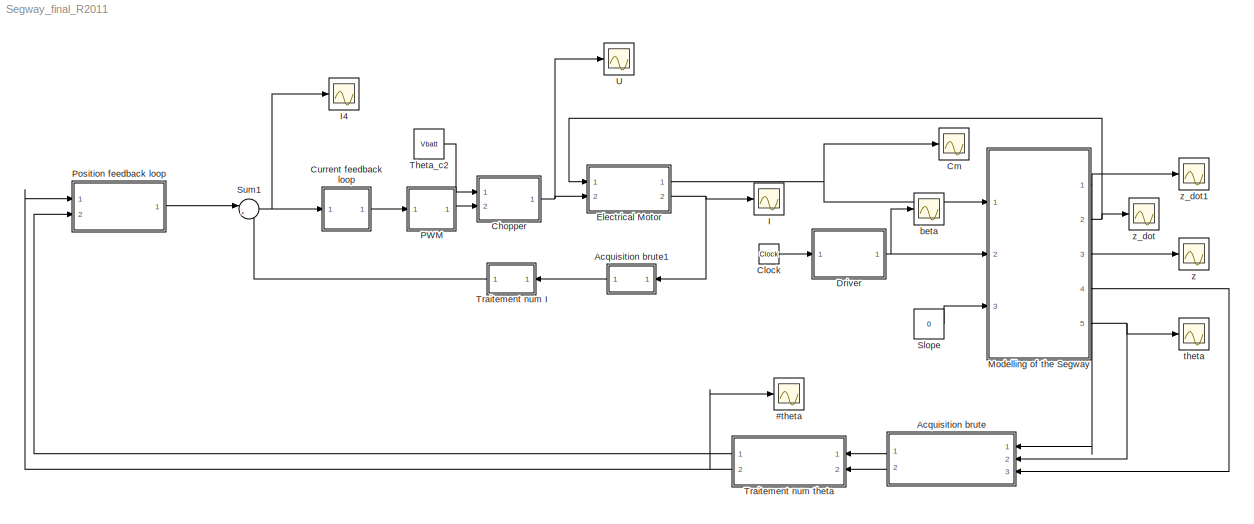
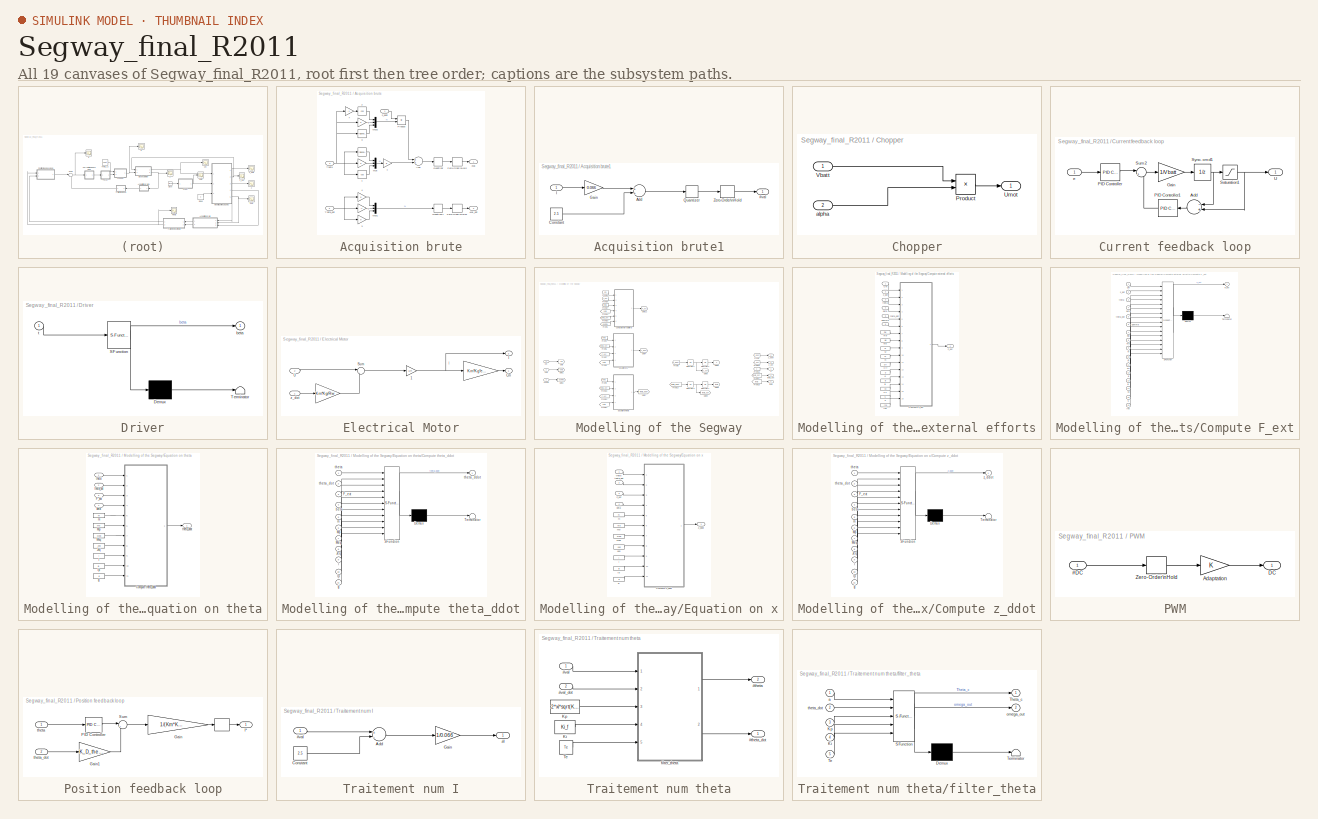
[diagram: thumbnail index - all 19 canvases of the model, root first then tree order]
MODEL Segway_final_R2011
KIND model
BLOCK [Scope] #theta
  DataFormat = StructureWithTime
  Floating = off
  LimitDataPoints = off
  NumInputPorts = 1
  Ports = [1]
  SID = 456
  SampleTime = 0
  SaveName = ScopeData7
  YMax = 0.045
  YMin = -0.045
  ZoomMode = yonly
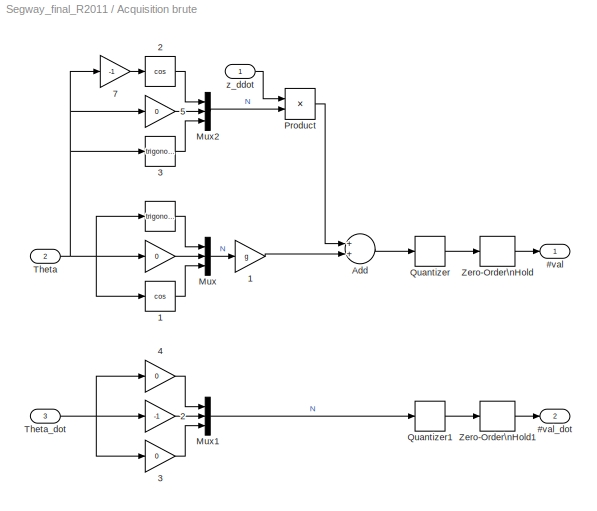
BLOCK [SubSystem] Acquisition brute
  FunctionWithSeparateData = off
  MaskHideContents = off
  MinAlgLoopOccurrences = off
  Opaque = off
  Ports = [3, 2]
  PropExecContextOutsideSubsystem = off
  RTWSystemCode = Auto
  RequestExecContextInheritance = off
  SID = 429
BLOCK [Trigonometry] Acquisition brute/   
  Ports = [1, 1]
  SID = 432
BLOCK [Gain] Acquisition brute/    
  Gain = 0
  OutDataTypeStr = Inherit: Inherit via internal rule
  ParamDataTypeStr = Inherit: Inherit via internal rule
  SID = 433
  SaturateOnIntegerOverflow = off
BLOCK [Gain] Acquisition brute/    1
  Gain = g
  OutDataTypeStr = Inherit: Inherit via internal rule
  ParamDataTypeStr = Inherit: Inherit via internal rule
  SID = 434
  SaturateOnIntegerOverflow = off
BLOCK [Gain] Acquisition brute/    2
  Gain = -1
  OutDataTypeStr = Inherit: Inherit via internal rule
  ParamDataTypeStr = Inherit: Inherit via internal rule
  SID = 435
  SaturateOnIntegerOverflow = off
BLOCK [Gain] Acquisition brute/    3
  Gain = 0
  OutDataTypeStr = Inherit: Inherit via internal rule
  ParamDataTypeStr = Inherit: Inherit via internal rule
  SID = 436
  SaturateOnIntegerOverflow = off
BLOCK [Gain] Acquisition brute/    4
  Gain = 0
  OutDataTypeStr = Inherit: Inherit via internal rule
  ParamDataTypeStr = Inherit: Inherit via internal rule
  SID = 437
  SaturateOnIntegerOverflow = off
BLOCK [Gain] Acquisition brute/    5
  Gain = 0
  OutDataTypeStr = Inherit: Inherit via internal rule
  ParamDataTypeStr = Inherit: Inherit via internal rule
  SID = 599
  SaturateOnIntegerOverflow = off
BLOCK [Gain] Acquisition brute/    7
  Gain = -1
  OutDataTypeStr = Inherit: Inherit via internal rule
  ParamDataTypeStr = Inherit: Inherit via internal rule
  SID = 603
  SaturateOnIntegerOverflow = off
BLOCK [Trigonometry] Acquisition brute/   1
  Operator = cos
  Ports = [1, 1]
  SID = 438
BLOCK [Trigonometry] Acquisition brute/   2
  Operator = cos
  Ports = [1, 1]
  SID = 598
BLOCK [Trigonometry] Acquisition brute/   3
  Ports = [1, 1]
  SID = 601
BLOCK [Outport] Acquisition brute/#val
  IconDisplay = Port number
  SID = 445
BLOCK [Outport] Acquisition brute/#val_dot
  IconDisplay = Port number
  Port = 2
  SID = 446
BLOCK [Sum] Acquisition brute/Add
  InputSameDT = off
  OutDataTypeStr = Inherit: Inherit via internal rule
  Ports = [2, 1]
  SID = 604
  SaturateOnIntegerOverflow = off
BLOCK [Mux] Acquisition brute/Mux
  DisplayOption = bar
  Inputs = 3
  Ports = [3, 1]
  SID = 439
BLOCK [Mux] Acquisition brute/Mux1
  DisplayOption = bar
  Inputs = 3
  Ports = [3, 1]
  SID = 440
BLOCK [Mux] Acquisition brute/Mux2
  DisplayOption = bar
  Inputs = 3
  Ports = [3, 1]
  SID = 602
BLOCK [Product] Acquisition brute/Product
  InputSameDT = off
  OutDataTypeStr = Inherit: Inherit via internal rule
  Ports = [2, 1]
  RndMeth = Floor
  SID = 605
  SaturateOnIntegerOverflow = off
BLOCK [Quantizer] Acquisition brute/Quantizer
  QuantizationInterval = 0.0039
  SID = 441
BLOCK [Quantizer] Acquisition brute/Quantizer1
  QuantizationInterval = 0.00122
  SID = 442
BLOCK [Inport] Acquisition brute/Theta
  IconDisplay = Port number
  Port = 2
  SID = 430
BLOCK [Inport] Acquisition brute/Theta_dot
  IconDisplay = Port number
  Port = 3
  SID = 431
BLOCK [ZeroOrderHold] Acquisition brute/Zero-Order\nHold
  SID = 443
  SampleTime = Te
BLOCK [ZeroOrderHold] Acquisition brute/Zero-Order\nHold1
  SID = 444
  SampleTime = Te
BLOCK [Inport] Acquisition brute/z_ddot
  IconDisplay = Port number
  SID = 597
BLOCK [SubSystem] Acquisition brute1
  FunctionWithSeparateData = off
  MaskHideContents = off
  MinAlgLoopOccurrences = off
  Opaque = off
  Ports = [1, 1]
  PropExecContextOutsideSubsystem = off
  RTWSystemCode = Auto
  RequestExecContextInheritance = off
  SID = 501
BLOCK [Outport] Acquisition brute1/#val
  IconDisplay = Port number
  SID = 517
BLOCK [Sum] Acquisition brute1/Add
  InputSameDT = off
  OutDataTypeStr = Inherit: Inherit via internal rule
  Ports = [2, 1]
  SID = 520
  SaturateOnIntegerOverflow = off
BLOCK [Constant] Acquisition brute1/Constant
  SID = 521
  Value = 2.5
BLOCK [Gain] Acquisition brute1/Gain
  Gain = 0.066
  OutDataTypeStr = Inherit: Inherit via internal rule
  ParamDataTypeStr = Inherit: Inherit via internal rule
  SID = 519
  SaturateOnIntegerOverflow = off
BLOCK [Inport] Acquisition brute1/I
  IconDisplay = Port number
  SID = 502
BLOCK [Quantizer] Acquisition brute1/Quantizer
  QuantizationInterval = 5/(2^10-1)
  SID = 513
BLOCK [ZeroOrderHold] Acquisition brute1/Zero-Order\nHold
  SID = 515
  SampleTime = Ti
BLOCK [SubSystem] Chopper
  FunctionWithSeparateData = off
  MaskHideContents = off
  MinAlgLoopOccurrences = off
  Opaque = off
  Ports = [2, 1]
  PropExecContextOutsideSubsystem = off
  RTWSystemCode = Auto
  RequestExecContextInheritance = off
  SID = 416
BLOCK [Product] Chopper/Product
  InputSameDT = off
  OutDataTypeStr = Inherit: Inherit via internal rule
  Ports = [2, 1]
  SID = 419
  SaturateOnIntegerOverflow = off
BLOCK [Outport] Chopper/Umot
  IconDisplay = Port number
  SID = 420
BLOCK [Inport] Chopper/Vbatt
  IconDisplay = Port number
  SID = 417
BLOCK [Inport] Chopper/alpha
  IconDisplay = Port number
  Port = 2
  SID = 418
BLOCK [Clock] Clock
  SID = 637
BLOCK [Scope] Cm
  DataFormat = StructureWithTime
  Floating = off
  LimitDataPoints = off
  NumInputPorts = 1
  Ports = [1]
  SID = 496
  SampleTime = 0
  SaveName = ScopeData6
  YMax = -40
  YMin = -170
  ZoomMode = xonly
BLOCK [SubSystem] Current feedback loop
  FunctionWithSeparateData = off
  MaskHideContents = off
  MinAlgLoopOccurrences = off
  Opaque = off
  Ports = [1, 1]
  PropExecContextOutsideSubsystem = off
  RTWSystemCode = Auto
  RequestExecContextInheritance = off
  SID = 543
BLOCK [Sum] Current feedback loop/Add
  InputSameDT = off
  Inputs = -+
  OutDataTypeStr = Inherit: Inherit via internal rule
  Ports = [2, 1]
  SID = 548
  SaturateOnIntegerOverflow = off
BLOCK [Gain] Current feedback loop/Gain
  Gain = 1/Vbatt
  OutDataTypeStr = Inherit: Inherit via internal rule
  ParamDataTypeStr = Inherit: Inherit via internal rule
  SID = 549
  SaturateOnIntegerOverflow = off
BLOCK [Reference] Current feedback loop/PID Controller  REF=simulink/Continuous/PID Controller
  AntiWindupMode = none
  Controller = I
  D = 0
  DOutDataTypeStr = Inherit: Inherit via internal rule
  DOutMax = []
  DOutMin = []
  DParamDataTypeStr = Inherit: Inherit via internal rule
  DParamMax = []
  DParamMin = []
  ExternalReset = none
  FilterContinuousStateAttributes = ''
  FilterMethod = Trapezoidal
  FilterOutDataTypeStr = Inherit: Inherit via internal rule
  FilterOutMax = []
  FilterOutMin = []
  FilterRTWStateStorageClass = Auto
  FilterStateMustResolveToSignalObject = off
  Form = Parallel
  I = K_I
  IOutDataTypeStr = Inherit: Inherit via internal rule
  IOutMax = []
  IOutMin = []
  IParamDataTypeStr = Inherit: Inherit via internal rule
  IParamMax = []
  IParamMin = []
  IgnoreLimit = off
  InitialConditionForFilter = 0
  InitialConditionForIntegrator = 0
  InitialConditionSource = internal
  IntegratorContinuousStateAttributes = ''
  IntegratorMethod = Backward Euler
  IntegratorOutDataTypeStr = Inherit: Inherit via internal rule
  IntegratorOutMax = []
  IntegratorOutMin = []
  IntegratorRTWStateStorageClass = Auto
  IntegratorStateMustResolveToSignalObject = off
  Kb = 1
  KbOutDataTypeStr = Inherit: Inherit via internal rule
  KbOutMax = []
  KbOutMin = []
  KbParamDataTypeStr = Inherit: Inherit via internal rule
  KbParamMax = []
  KbParamMin = []
  Kt = 1
  KtOutDataTypeStr = Inherit: Inherit via internal rule
  KtOutMax = []
  KtOutMin = []
  KtParamDataTypeStr = Inherit: Inherit via internal rule
  KtParamMax = []
  KtParamMin = []
  LimitOutput = off
  LinearizeAsGain = on
  LockScale = off
  LowerSaturationLimit = -inf
  N = 100
  NOutDataTypeStr = Inherit: Inherit via internal rule
  NOutMax = []
  NOutMin = []
  NParamDataTypeStr = Inherit: Inherit via internal rule
  NParamMax = []
  NParamMin = []
  P = 0.657995197419709
  POutDataTypeStr = Inherit: Inherit via internal rule
  POutMax = []
  POutMin = []
  PParamDataTypeStr = Inherit: Inherit via internal rule
  PParamMax = []
  PParamMin = []
  Ports = [1, 1]
  RndMeth = Floor
  SID = 550
  SampleTime = Ti
  SaturateOnIntegerOverflow = off
  SaturationOutDataTypeStr = Inherit: Same as input
  SaturationOutMax = []
  SaturationOutMin = []
  SourceBlock = simulink/Continuous/PID Controller
  SourceType = PID 1dof
  SumAccumDataTypeStr = Inherit: Inherit via internal rule
  SumDAccumDataTypeStr = Inherit: Inherit via internal rule
  SumDOutDataTypeStr = Inherit: Inherit via internal rule
  SumDOutMax = []
  SumDOutMin = []
  SumI1AccumDataTypeStr = Inherit: Inherit via internal rule
  SumI1OutDataTypeStr = Inherit: Inherit via internal rule
  SumI1OutMax = []
  SumI1OutMin = []
  SumI2AccumDataTypeStr = Inherit: Inherit via internal rule
  SumI2OutDataTypeStr = Inherit: Inherit via internal rule
  SumI2OutMax = []
  SumI2OutMin = []
  SumI3AccumDataTypeStr = Inherit: Inherit via internal rule
  SumI3OutDataTypeStr = Inherit: Inherit via internal rule
  SumI3OutMax = []
  SumI3OutMin = []
  SumOutDataTypeStr = Inherit: Inherit via internal rule
  SumOutMax = []
  SumOutMin = []
  TimeDomain = Discrete-time
  TrackingMode = off
  UpperSaturationLimit = inf
  ZeroCross = on
BLOCK [Reference] Current feedback loop/PID Controller1  REF=simulink/Continuous/PID Controller
  AntiWindupMode = none
  Controller = I
  D = 0
  DOutDataTypeStr = Inherit: Inherit via internal rule
  DOutMax = []
  DOutMin = []
  DParamDataTypeStr = Inherit: Inherit via internal rule
  DParamMax = []
  DParamMin = []
  ExternalReset = none
  FilterContinuousStateAttributes = ''
  FilterMethod = Trapezoidal
  FilterOutDataTypeStr = Inherit: Inherit via internal rule
  FilterOutMax = []
  FilterOutMin = []
  FilterRTWStateStorageClass = Auto
  FilterStateMustResolveToSignalObject = off
  Form = Parallel
  I = K_w
  IOutDataTypeStr = Inherit: Inherit via internal rule
  IOutMax = []
  IOutMin = []
  IParamDataTypeStr = Inherit: Inherit via internal rule
  IParamMax = []
  IParamMin = []
  IgnoreLimit = off
  InitialConditionForFilter = 0
  InitialConditionForIntegrator = 0
  InitialConditionSource = internal
  IntegratorContinuousStateAttributes = ''
  IntegratorMethod = Trapezoidal
  IntegratorOutDataTypeStr = Inherit: Inherit via internal rule
  IntegratorOutMax = []
  IntegratorOutMin = []
  IntegratorRTWStateStorageClass = Auto
  IntegratorStateMustResolveToSignalObject = off
  Kb = 1
  KbOutDataTypeStr = Inherit: Inherit via internal rule
  KbOutMax = []
  KbOutMin = []
  KbParamDataTypeStr = Inherit: Inherit via internal rule
  KbParamMax = []
  KbParamMin = []
  Kt = 1
  KtOutDataTypeStr = Inherit: Inherit via internal rule
  KtOutMax = []
  KtOutMin = []
  KtParamDataTypeStr = Inherit: Inherit via internal rule
  KtParamMax = []
  KtParamMin = []
  LimitOutput = off
  LinearizeAsGain = on
  LockScale = off
  LowerSaturationLimit = -inf
  N = 100
  NOutDataTypeStr = Inherit: Inherit via internal rule
  NOutMax = []
  NOutMin = []
  NParamDataTypeStr = Inherit: Inherit via internal rule
  NParamMax = []
  NParamMin = []
  P = 0.657995197419709
  POutDataTypeStr = Inherit: Inherit via internal rule
  POutMax = []
  POutMin = []
  PParamDataTypeStr = Inherit: Inherit via internal rule
  PParamMax = []
  PParamMin = []
  Ports = [1, 1]
  RndMeth = Floor
  SID = 551
  SampleTime = Ti
  SaturateOnIntegerOverflow = off
  SaturationOutDataTypeStr = Inherit: Same as input
  SaturationOutMax = []
  SaturationOutMin = []
  SourceBlock = simulink/Continuous/PID Controller
  SourceType = PID 1dof
  SumAccumDataTypeStr = Inherit: Inherit via internal rule
  SumDAccumDataTypeStr = Inherit: Inherit via internal rule
  SumDOutDataTypeStr = Inherit: Inherit via internal rule
  SumDOutMax = []
  SumDOutMin = []
  SumI1AccumDataTypeStr = Inherit: Inherit via internal rule
  SumI1OutDataTypeStr = Inherit: Inherit via internal rule
  SumI1OutMax = []
  SumI1OutMin = []
  SumI2AccumDataTypeStr = Inherit: Inherit via internal rule
  SumI2OutDataTypeStr = Inherit: Inherit via internal rule
  SumI2OutMax = []
  SumI2OutMin = []
  SumI3AccumDataTypeStr = Inherit: Inherit via internal rule
  SumI3OutDataTypeStr = Inherit: Inherit via internal rule
  SumI3OutMax = []
  SumI3OutMin = []
  SumOutDataTypeStr = Inherit: Inherit via internal rule
  SumOutMax = []
  SumOutMin = []
  TimeDomain = Discrete-time
  TrackingMode = off
  UpperSaturationLimit = inf
  ZeroCross = on
BLOCK [Saturate] Current feedback loop/Saturation1
  InputPortMap = u0
  LowerLimit = -1
  Ports = [1, 1]
  SID = 552
  UpperLimit = 1
BLOCK [Sum] Current feedback loop/Sum2
  IconShape = round
  InputSameDT = off
  Inputs = |++
  OutDataTypeStr = Inherit: Inherit via internal rule
  Ports = [2, 1]
  SID = 553
  SaturateOnIntegerOverflow = off
BLOCK [UnitDelay] Current feedback loop/Sync. cmd1
  InputProcessing = Elements as channels (sample based)
  SID = 554
  SampleTime = -1
BLOCK [Outport] Current feedback loop/U
  IconDisplay = Port number
  SID = 547
BLOCK [Inport] Current feedback loop/e
  IconDisplay = Port number
  SID = 544
BLOCK [SubSystem] Driver
  ErrorFcn = Stateflow.Translate.translate
  FunctionWithSeparateData = off
  MaskDescription = Embedded MATLAB block
  MaskDisplay = bgColor = Simulink.Root.ColorString2Rgb(get_param(gcbh, 'BackgroundColor')); image(imread('private/eml_membrane_16.png','png','BackgroundColor',bgColor(1:3)),'center'); disp([10 10 'fcn']);
  MaskHideContents = off
  MaskIconFrame = on
  MaskIconOpaque = off
  MaskIconRotate = none
  MaskIconUnits = normalized
  MaskPortRotate = default
  MaskSelfModifiable = on
  MaskType = Stateflow
  MinAlgLoopOccurrences = off
  Opaque = off
  PermitHierarchicalResolution = ParametersOnly
  Ports = [1, 1]
  PropExecContextOutsideSubsystem = off
  RTWSystemCode = Auto
  RequestExecContextInheritance = off
  SID = 636
  TreatAsAtomicUnit = on
BLOCK [Demux] Driver/ Demux 
  Outputs = 1
  Ports = [1, 1]
  SID = 636::19
BLOCK [S-Function] Driver/ SFunction 
  EnableBusSupport = on
  FunctionName = sf_sfun
  PortCounts = [1 2]
  Ports = [1, 2]
  SID = 636::18
  Tag = Stateflow S-Function Segway_final_R2011 2
BLOCK [Terminator] Driver/ Terminator 
  SID = 636::20
BLOCK [Outport] Driver/beta
  IconDisplay = Port number
  SID = 636::5
BLOCK [Inport] Driver/t
  IconDisplay = Port number
  SID = 636::1
BLOCK [SubSystem] Electrical Motor
  FunctionWithSeparateData = off
  MaskHideContents = off
  MinAlgLoopOccurrences = off
  Opaque = off
  Ports = [2, 2]
  PropExecContextOutsideSubsystem = off
  RTWSystemCode = Auto
  RequestExecContextInheritance = off
  SID = 402
BLOCK [Gain] Electrical Motor/  
  Gain = Km*Kg*eta_pwc
  OutDataTypeStr = Inherit: Inherit via internal rule
  ParamDataTypeStr = Inherit: Inherit via internal rule
  SID = 406
  SaturateOnIntegerOverflow = off
BLOCK [Gain] Electrical Motor/   
  Gain = Km*Kg/Rw
  OutDataTypeStr = Inherit: Inherit via internal rule
  ParamDataTypeStr = Inherit: Inherit via internal rule
  SID = 407
  SaturateOnIntegerOverflow = off
BLOCK [Gain] Electrical Motor/ 1
  Gain = 1/R
  OutDataTypeStr = Inherit: Inherit via internal rule
  ParamDataTypeStr = Inherit: Inherit via internal rule
  SID = 470
  SaturateOnIntegerOverflow = off
BLOCK [Outport] Electrical Motor/Cm
  IconDisplay = Port number
  SID = 412
BLOCK [Outport] Electrical Motor/I
  IconDisplay = Port number
  Port = 2
  SID = 411
BLOCK [Sum] Electrical Motor/Sum
  IconShape = round
  InputSameDT = off
  Inputs = |+-
  OutDataTypeStr = Inherit: Inherit via internal rule
  Ports = [2, 1]
  SID = 408
  SaturateOnIntegerOverflow = off
BLOCK [Inport] Electrical Motor/U
  IconDisplay = Port number
  Port = 2
  SID = 404
BLOCK [Inport] Electrical Motor/z_dot
  IconDisplay = Port number
  SID = 403
BLOCK [Scope] I
  DataFormat = StructureWithTime
  Floating = off
  LimitDataPoints = off
  NumInputPorts = 1
  Ports = [1]
  SID = 414
  SampleTime = 0
  SaveName = ScopeData5
  YMax = 0.0225
  YMin = -0.0275
  ZoomMode = xonly
BLOCK [Scope] I4
  DataFormat = StructureWithTime
  Floating = off
  LimitDataPoints = off
  NumInputPorts = 1
  Ports = [1]
  SID = 558
  SampleTime = 0
  SaveName = ScopeData9
  YMax = -40
  YMin = -170
  ZoomMode = xonly
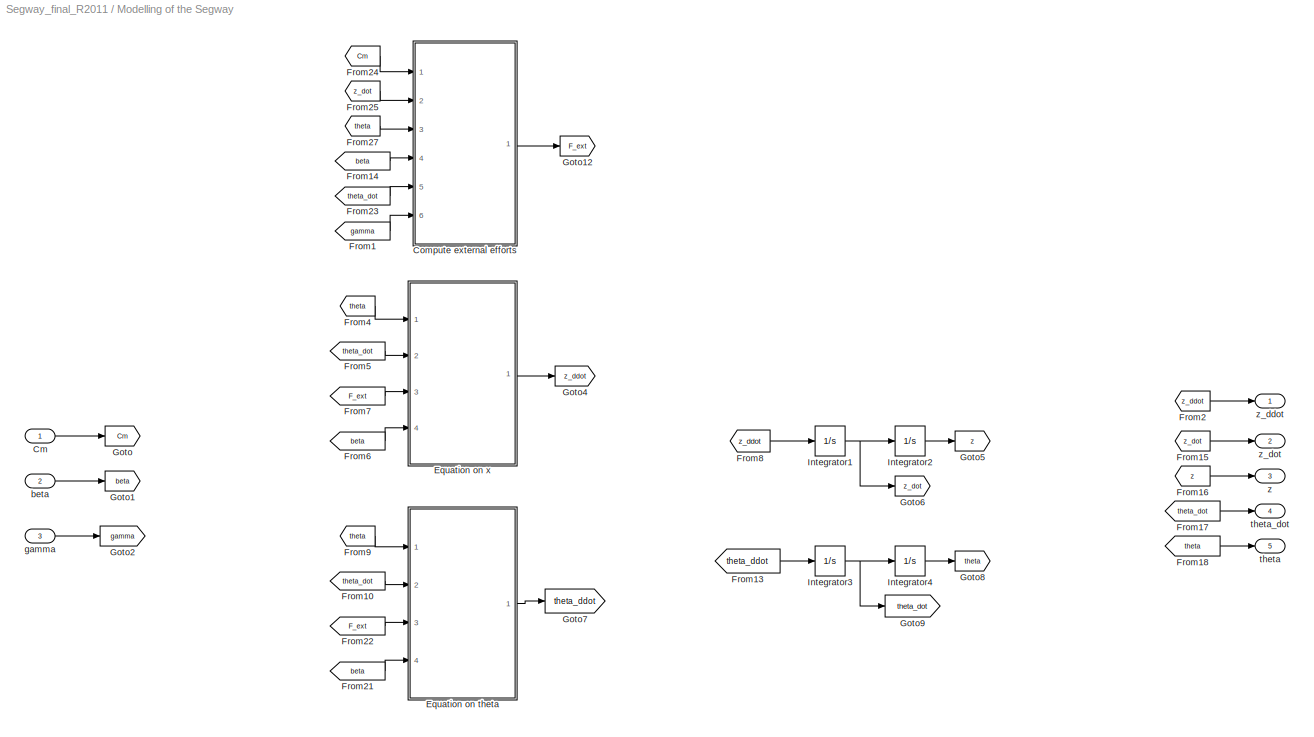
BLOCK [SubSystem] Modelling of the Segway
  FunctionWithSeparateData = off
  MaskHideContents = off
  MinAlgLoopOccurrences = off
  Opaque = off
  Ports = [3, 5]
  PropExecContextOutsideSubsystem = off
  RTWSystemCode = Auto
  RequestExecContextInheritance = off
  SID = 1
BLOCK [Inport] Modelling of the Segway/Cm
  IconDisplay = Port number
  SID = 2
BLOCK [SubSystem] Modelling of the Segway/Compute external efforts
  FunctionWithSeparateData = off
  MaskHideContents = off
  MinAlgLoopOccurrences = off
  Opaque = off
  Ports = [6, 1]
  PropExecContextOutsideSubsystem = off
  RTWSystemCode = Auto
  RequestExecContextInheritance = off
  SID = 158
BLOCK [Inport] Modelling of the Segway/Compute external efforts/Cm
  IconDisplay = Port number
  SID = 159
BLOCK [SubSystem] Modelling of the Segway/Compute external efforts/Compute F_ext
  ErrorFcn = Stateflow.Translate.translate
  FunctionWithSeparateData = off
  MaskDescription = Embedded MATLAB block
  MaskDisplay = bgColor = Simulink.Root.ColorString2Rgb(get_param(gcbh, 'BackgroundColor')); image(imread('private/eml_membrane_16.png','png','BackgroundColor',bgColor(1:3)),'center'); disp([10 10 'compute_F_ext']);
  MaskHideContents = off
  MaskIconFrame = on
  MaskIconOpaque = off
  MaskIconRotate = none
  MaskIconUnits = normalized
  MaskPortRotate = default
  MaskSelfModifiable = on
  MaskType = Stateflow
  MinAlgLoopOccurrences = off
  Opaque = off
  PermitHierarchicalResolution = ParametersOnly
  Ports = [16, 1]
  PropExecContextOutsideSubsystem = off
  RTWSystemCode = Auto
  RequestExecContextInheritance = off
  SID = 162
  TreatAsAtomicUnit = on
BLOCK [Demux] Modelling of the Segway/Compute external efforts/Compute F_ext/ Demux 
  Outputs = 1
  Ports = [1, 1]
  SID = 162::108
BLOCK [S-Function] Modelling of the Segway/Compute external efforts/Compute F_ext/ SFunction 
  EnableBusSupport = on
  FunctionName = sf_sfun
  PortCounts = [16 2]
  Ports = [16, 2]
  SID = 162::107
  Tag = Stateflow S-Function Segway_final_R2011 5
BLOCK [Terminator] Modelling of the Segway/Compute external efforts/Compute F_ext/ Terminator 
  SID = 162::109
BLOCK [Inport] Modelling of the Segway/Compute external efforts/Compute F_ext/Cm
  IconDisplay = Port number
  SID = 162::18
BLOCK [Inport] Modelling of the Segway/Compute external efforts/Compute F_ext/Crr
  IconDisplay = Port number
  Port = 11
  SID = 162::112
BLOCK [Inport] Modelling of the Segway/Compute external efforts/Compute F_ext/Cx
  IconDisplay = Port number
  Port = 14
  SID = 162::115
BLOCK [Outport] Modelling of the Segway/Compute external efforts/Compute F_ext/F_ext
  IconDisplay = Port number
  SID = 162::5
BLOCK [Inport] Modelling of the Segway/Compute external efforts/Compute F_ext/M
  IconDisplay = Port number
  Port = 9
  SID = 162::110
BLOCK [Inport] Modelling of the Segway/Compute external efforts/Compute F_ext/Mp
  IconDisplay = Port number
  Port = 8
  SID = 162::21
BLOCK [Inport] Modelling of the Segway/Compute external efforts/Compute F_ext/Rw
  IconDisplay = Port number
  Port = 7
  SID = 162::24
BLOCK [Inport] Modelling of the Segway/Compute external efforts/Compute F_ext/S
  IconDisplay = Port number
  Port = 15
  SID = 162::116
BLOCK [Inport] Modelling of the Segway/Compute external efforts/Compute F_ext/beta
  IconDisplay = Port number
  Port = 4
  SID = 162::118
BLOCK [Inport] Modelling of the Segway/Compute external efforts/Compute F_ext/g
  IconDisplay = Port number
  Port = 12
  SID = 162::113
BLOCK [Inport] Modelling of the Segway/Compute external efforts/Compute F_ext/gamma
  IconDisplay = Port number
  Port = 6
  SID = 162::122
BLOCK [Inport] Modelling of the Segway/Compute external efforts/Compute F_ext/lp
  IconDisplay = Port number
  Port = 13
  SID = 162::114
BLOCK [Inport] Modelling of the Segway/Compute external efforts/Compute F_ext/m
  IconDisplay = Port number
  Port = 10
  SID = 162::111
BLOCK [Inport] Modelling of the Segway/Compute external efforts/Compute F_ext/rho
  IconDisplay = Port number
  Port = 16
  SID = 162::120
BLOCK [Inport] Modelling of the Segway/Compute external efforts/Compute F_ext/theta
  IconDisplay = Port number
  Port = 3
  SID = 162::117
BLOCK [Inport] Modelling of the Segway/Compute external efforts/Compute F_ext/theta_dot
  IconDisplay = Port number
  Port = 5
  SID = 162::1
BLOCK [Inport] Modelling of the Segway/Compute external efforts/Compute F_ext/z_dot
  IconDisplay = Port number
  Port = 2
  SID = 162::19
BLOCK [Constant] Modelling of the Segway/Compute external efforts/Crr
  SID = 177
  Value = Crr
BLOCK [Constant] Modelling of the Segway/Compute external efforts/Cx
  SID = 165
  Value = Cx
BLOCK [Outport] Modelling of the Segway/Compute external efforts/F_ext
  IconDisplay = Port number
  SID = 168
BLOCK [Constant] Modelling of the Segway/Compute external efforts/M
  SID = 175
  Value = M
BLOCK [Constant] Modelling of the Segway/Compute external efforts/Mp
  SID = 174
  Value = Mp
BLOCK [Constant] Modelling of the Segway/Compute external efforts/Rw
  SID = 167
  Value = Rw
BLOCK [Constant] Modelling of the Segway/Compute external efforts/S
  SID = 166
  Value = S
BLOCK [Inport] Modelling of the Segway/Compute external efforts/beta
  IconDisplay = Port number
  Port = 4
  SID = 183
BLOCK [Constant] Modelling of the Segway/Compute external efforts/g
  SID = 178
  Value = g
BLOCK [Inport] Modelling of the Segway/Compute external efforts/gamma
  IconDisplay = Port number
  Port = 6
  SID = 588
BLOCK [Constant] Modelling of the Segway/Compute external efforts/lp
  SID = 179
  Value = lp
BLOCK [Constant] Modelling of the Segway/Compute external efforts/m
  SID = 176
  Value = m
BLOCK [Constant] Modelling of the Segway/Compute external efforts/rho
  SID = 583
  Value = rho
BLOCK [Inport] Modelling of the Segway/Compute external efforts/theta
  IconDisplay = Port number
  Port = 3
  SID = 182
BLOCK [Inport] Modelling of the Segway/Compute external efforts/theta_dot
  IconDisplay = Port number
  Port = 5
  SID = 161
BLOCK [Inport] Modelling of the Segway/Compute external efforts/z_dot
  IconDisplay = Port number
  Port = 2
  SID = 160
BLOCK [SubSystem] Modelling of the Segway/Equation on theta
  FunctionWithSeparateData = off
  MaskHideContents = off
  MinAlgLoopOccurrences = off
  Opaque = off
  Ports = [4, 1]
  PropExecContextOutsideSubsystem = off
  RTWSystemCode = Auto
  RequestExecContextInheritance = off
  SID = 56
BLOCK [SubSystem] Modelling of the Segway/Equation on theta/Compute theta_ddot
  ErrorFcn = Stateflow.Translate.translate
  FunctionWithSeparateData = off
  MaskDescription = Embedded MATLAB block
  MaskDisplay = bgColor = Simulink.Root.ColorString2Rgb(get_param(gcbh, 'BackgroundColor')); image(imread('private/eml_membrane_16.png','png','BackgroundColor',bgColor(1:3)),'center'); disp([10 10 'compute_theta_ddot']);
  MaskHideContents = off
  MaskIconFrame = on
  MaskIconOpaque = off
  MaskIconRotate = none
  MaskIconUnits = normalized
  MaskPortRotate = default
  MaskSelfModifiable = on
  MaskType = Stateflow
  MinAlgLoopOccurrences = off
  Opaque = off
  PermitHierarchicalResolution = ParametersOnly
  Ports = [11, 1]
  PropExecContextOutsideSubsystem = off
  RTWSystemCode = Auto
  RequestExecContextInheritance = off
  SID = 61
  TreatAsAtomicUnit = on
BLOCK [Demux] Modelling of the Segway/Equation on theta/Compute theta_ddot/ Demux 
  Outputs = 1
  Ports = [1, 1]
  SID = 61::108
BLOCK [S-Function] Modelling of the Segway/Equation on theta/Compute theta_ddot/ SFunction 
  EnableBusSupport = on
  FunctionName = sf_sfun
  PortCounts = [11 2]
  Ports = [11, 2]
  SID = 61::107
  Tag = Stateflow S-Function Segway_final_R2011 3
BLOCK [Terminator] Modelling of the Segway/Equation on theta/Compute theta_ddot/ Terminator 
  SID = 61::109
BLOCK [Inport] Modelling of the Segway/Equation on theta/Compute theta_ddot/F_ext
  IconDisplay = Port number
  Port = 3
  SID = 61::111
BLOCK [Inport] Modelling of the Segway/Equation on theta/Compute theta_ddot/Jeq
  IconDisplay = Port number
  Port = 8
  SID = 61::27
BLOCK [Inport] Modelling of the Segway/Equation on theta/Compute theta_ddot/Meq
  IconDisplay = Port number
  Port = 7
  SID = 61::26
BLOCK [Inport] Modelling of the Segway/Equation on theta/Compute theta_ddot/Mp
  IconDisplay = Port number
  Port = 6
  SID = 61::25
BLOCK [Inport] Modelling of the Segway/Equation on theta/Compute theta_ddot/beta
  IconDisplay = Port number
  Port = 4
  SID = 61::20
BLOCK [Inport] Modelling of the Segway/Equation on theta/Compute theta_ddot/g
  IconDisplay = Port number
  Port = 11
  SID = 61::30
BLOCK [Inport] Modelling of the Segway/Equation on theta/Compute theta_ddot/l
  IconDisplay = Port number
  Port = 9
  SID = 61::28
BLOCK [Inport] Modelling of the Segway/Equation on theta/Compute theta_ddot/lp
  IconDisplay = Port number
  Port = 10
  SID = 61::29
BLOCK [Inport] Modelling of the Segway/Equation on theta/Compute theta_ddot/m
  IconDisplay = Port number
  Port = 5
  SID = 61::21
BLOCK [Inport] Modelling of the Segway/Equation on theta/Compute theta_ddot/theta
  IconDisplay = Port number
  SID = 61::1
BLOCK [Outport] Modelling of the Segway/Equation on theta/Compute theta_ddot/theta_ddot
  IconDisplay = Port number
  SID = 61::5
BLOCK [Inport] Modelling of the Segway/Equation on theta/Compute theta_ddot/theta_dot
  IconDisplay = Port number
  Port = 2
  SID = 61::19
BLOCK [Inport] Modelling of the Segway/Equation on theta/F_ext
  IconDisplay = Port number
  Port = 3
  SID = 59
BLOCK [Constant] Modelling of the Segway/Equation on theta/Jeq
  SID = 62
  Value = Jeq
BLOCK [Constant] Modelling of the Segway/Equation on theta/Meq
  SID = 65
  Value = Meq
BLOCK [Constant] Modelling of the Segway/Equation on theta/Mp
  SID = 66
  Value = Mp
BLOCK [Inport] Modelling of the Segway/Equation on theta/beta
  IconDisplay = Port number
  Port = 4
  SID = 60
BLOCK [Constant] Modelling of the Segway/Equation on theta/g
  SID = 68
  Value = g
BLOCK [Constant] Modelling of the Segway/Equation on theta/l
  SID = 69
  Value = l
BLOCK [Constant] Modelling of the Segway/Equation on theta/lp
  SID = 70
  Value = lp
BLOCK [Constant] Modelling of the Segway/Equation on theta/m
  SID = 71
  Value = m
BLOCK [Inport] Modelling of the Segway/Equation on theta/theta
  IconDisplay = Port number
  SID = 57
BLOCK [Outport] Modelling of the Segway/Equation on theta/theta_ddot
  IconDisplay = Port number
  SID = 72
BLOCK [Inport] Modelling of the Segway/Equation on theta/theta_dot
  IconDisplay = Port number
  Port = 2
  SID = 58
BLOCK [SubSystem] Modelling of the Segway/Equation on x
  FunctionWithSeparateData = off
  MaskHideContents = off
  MinAlgLoopOccurrences = off
  Opaque = off
  Ports = [4, 1]
  PropExecContextOutsideSubsystem = off
  RTWSystemCode = Auto
  RequestExecContextInheritance = off
  SID = 28
BLOCK [SubSystem] Modelling of the Segway/Equation on x/Compute z_ddot
  ErrorFcn = Stateflow.Translate.translate
  FunctionWithSeparateData = off
  MaskDescription = Embedded MATLAB block
  MaskDisplay = bgColor = Simulink.Root.ColorString2Rgb(get_param(gcbh, 'BackgroundColor')); image(imread('private/eml_membrane_16.png','png','BackgroundColor',bgColor(1:3)),'center'); disp([10 10 'compute_z_ddot']);
  MaskHideContents = off
  MaskIconFrame = on
  MaskIconOpaque = off
  MaskIconRotate = none
  MaskIconUnits = normalized
  MaskPortRotate = default
  MaskSelfModifiable = on
  MaskType = Stateflow
  MinAlgLoopOccurrences = off
  Opaque = off
  PermitHierarchicalResolution = ParametersOnly
  Ports = [11, 1]
  PropExecContextOutsideSubsystem = off
  RTWSystemCode = Auto
  RequestExecContextInheritance = off
  SID = 32
  TreatAsAtomicUnit = on
BLOCK [Demux] Modelling of the Segway/Equation on x/Compute z_ddot/ Demux 
  Outputs = 1
  Ports = [1, 1]
  SID = 32::108
BLOCK [S-Function] Modelling of the Segway/Equation on x/Compute z_ddot/ SFunction 
  EnableBusSupport = on
  FunctionName = sf_sfun
  PortCounts = [11 2]
  Ports = [11, 2]
  SID = 32::107
  Tag = Stateflow S-Function Segway_final_R2011 1
BLOCK [Terminator] Modelling of the Segway/Equation on x/Compute z_ddot/ Terminator 
  SID = 32::109
BLOCK [Inport] Modelling of the Segway/Equation on x/Compute z_ddot/F_ext
  IconDisplay = Port number
  Port = 3
  SID = 32::18
BLOCK [Inport] Modelling of the Segway/Equation on x/Compute z_ddot/Jeq
  IconDisplay = Port number
  Port = 8
  SID = 32::27
BLOCK [Inport] Modelling of the Segway/Equation on x/Compute z_ddot/Meq
  IconDisplay = Port number
  Port = 7
  SID = 32::26
BLOCK [Inport] Modelling of the Segway/Equation on x/Compute z_ddot/Mp
  IconDisplay = Port number
  Port = 6
  SID = 32::25
BLOCK [Inport] Modelling of the Segway/Equation on x/Compute z_ddot/beta
  IconDisplay = Port number
  Port = 4
  SID = 32::20
BLOCK [Inport] Modelling of the Segway/Equation on x/Compute z_ddot/g
  IconDisplay = Port number
  Port = 11
  SID = 32::30
BLOCK [Inport] Modelling of the Segway/Equation on x/Compute z_ddot/l
  IconDisplay = Port number
  Port = 9
  SID = 32::28
BLOCK [Inport] Modelling of the Segway/Equation on x/Compute z_ddot/lp
  IconDisplay = Port number
  Port = 10
  SID = 32::29
BLOCK [Inport] Modelling of the Segway/Equation on x/Compute z_ddot/m
  IconDisplay = Port number
  Port = 5
  SID = 32::21
BLOCK [Inport] Modelling of the Segway/Equation on x/Compute z_ddot/theta
  IconDisplay = Port number
  SID = 32::1
BLOCK [Inport] Modelling of the Segway/Equation on x/Compute z_ddot/theta_dot
  IconDisplay = Port number
  Port = 2
  SID = 32::19
BLOCK [Outport] Modelling of the Segway/Equation on x/Compute z_ddot/z_ddot
  IconDisplay = Port number
  SID = 32::5
BLOCK [Inport] Modelling of the Segway/Equation on x/F_ext
  IconDisplay = Port number
  Port = 3
  SID = 39
BLOCK [Constant] Modelling of the Segway/Equation on x/Jeq
  SID = 33
  Value = Jeq
BLOCK [Constant] Modelling of the Segway/Equation on x/Meq
  SID = 34
  Value = Meq
BLOCK [Constant] Modelling of the Segway/Equation on x/Mp
  SID = 35
  Value = Mp
BLOCK [Inport] Modelling of the Segway/Equation on x/beta
  IconDisplay = Port number
  Port = 4
  SID = 31
BLOCK [Constant] Modelling of the Segway/Equation on x/g
  SID = 42
  Value = g
BLOCK [Constant] Modelling of the Segway/Equation on x/l
  SID = 37
  Value = l
BLOCK [Constant] Modelling of the Segway/Equation on x/lp
  SID = 41
  Value = lp
BLOCK [Constant] Modelling of the Segway/Equation on x/m
  SID = 40
  Value = m
BLOCK [Inport] Modelling of the Segway/Equation on x/theta
  IconDisplay = Port number
  SID = 29
BLOCK [Inport] Modelling of the Segway/Equation on x/theta_dot
  IconDisplay = Port number
  Port = 2
  SID = 30
BLOCK [Outport] Modelling of the Segway/Equation on x/z_ddot
  IconDisplay = Port number
  SID = 38
BLOCK [From] Modelling of the Segway/From1
  GotoTag = gamma
  SID = 589
  TagVisibility = global
BLOCK [From] Modelling of the Segway/From10
  GotoTag = theta_dot
  SID = 79
  TagVisibility = global
BLOCK [From] Modelling of the Segway/From13
  GotoTag = theta_ddot
  SID = 83
  TagVisibility = global
BLOCK [From] Modelling of the Segway/From14
  GotoTag = beta
  SID = 376
  TagVisibility = global
BLOCK [From] Modelling of the Segway/From15
  GotoTag = z_dot
  SID = 93
  TagVisibility = global
BLOCK [From] Modelling of the Segway/From16
  GotoTag = z
  SID = 94
  TagVisibility = global
BLOCK [From] Modelling of the Segway/From17
  GotoTag = theta_dot
  SID = 95
  TagVisibility = global
BLOCK [From] Modelling of the Segway/From18
  GotoTag = theta
  SID = 96
  TagVisibility = global
BLOCK [From] Modelling of the Segway/From2
  GotoTag = z_ddot
  SID = 593
  TagVisibility = global
BLOCK [From] Modelling of the Segway/From21
  GotoTag = beta
  SID = 156
  TagVisibility = global
BLOCK [From] Modelling of the Segway/From22
  GotoTag = F_ext
  SID = 157
  TagVisibility = global
BLOCK [From] Modelling of the Segway/From23
  GotoTag = theta_dot
  SID = 180
  TagVisibility = global
BLOCK [From] Modelling of the Segway/From24
  GotoTag = Cm
  SID = 170
  TagVisibility = global
BLOCK [From] Modelling of the Segway/From25
  GotoTag = z_dot
  SID = 171
  TagVisibility = global
BLOCK [From] Modelling of the Segway/From27
  GotoTag = theta
  SID = 184
  TagVisibility = global
BLOCK [From] Modelling of the Segway/From4
  GotoTag = theta
  SID = 46
  TagVisibility = global
BLOCK [From] Modelling of the Segway/From5
  GotoTag = theta_dot
  SID = 47
  TagVisibility = global
BLOCK [From] Modelling of the Segway/From6
  GotoTag = beta
  SID = 48
  TagVisibility = global
BLOCK [From] Modelling of the Segway/From7
  GotoTag = F_ext
  SID = 49
  TagVisibility = global
BLOCK [From] Modelling of the Segway/From8
  GotoTag = z_ddot
  SID = 51
  TagVisibility = global
BLOCK [From] Modelling of the Segway/From9
  GotoTag = theta
  SID = 78
  TagVisibility = global
BLOCK [Goto] Modelling of the Segway/Goto
  GotoTag = Cm
  SID = 16
  TagVisibility = global
BLOCK [Goto] Modelling of the Segway/Goto1
  GotoTag = beta
  SID = 18
  TagVisibility = global
BLOCK [Goto] Modelling of the Segway/Goto12
  GotoTag = F_ext
  SID = 172
  TagVisibility = global
BLOCK [Goto] Modelling of the Segway/Goto2
  GotoTag = gamma
  SID = 591
  TagVisibility = global
BLOCK [Goto] Modelling of the Segway/Goto4
  GotoTag = z_ddot
  SID = 50
  TagVisibility = global
BLOCK [Goto] Modelling of the Segway/Goto5
  GotoTag = z
  SID = 54
  TagVisibility = global
BLOCK [Goto] Modelling of the Segway/Goto6
  GotoTag = z_dot
  SID = 55
  TagVisibility = global
BLOCK [Goto] Modelling of the Segway/Goto7
  GotoTag = theta_ddot
  SID = 82
  TagVisibility = global
BLOCK [Goto] Modelling of the Segway/Goto8
  GotoTag = theta
  SID = 84
  TagVisibility = global
BLOCK [Goto] Modelling of the Segway/Goto9
  GotoTag = theta_dot
  SID = 85
  TagVisibility = global
BLOCK [Integrator] Modelling of the Segway/Integrator1
  InitialCondition = z_dot_0
  Ports = [1, 1]
  SID = 52
BLOCK [Integrator] Modelling of the Segway/Integrator2
  InitialCondition = z_0
  Ports = [1, 1]
  SID = 53
BLOCK [Integrator] Modelling of the Segway/Integrator3
  InitialCondition = theta_dot_0
  Ports = [1, 1]
  SID = 86
BLOCK [Integrator] Modelling of the Segway/Integrator4
  InitialCondition = theta_0
  Ports = [1, 1]
  SID = 87
BLOCK [Inport] Modelling of the Segway/beta
  IconDisplay = Port number
  Port = 2
  SID = 17
BLOCK [Inport] Modelling of the Segway/gamma
  IconDisplay = Port number
  Port = 3
  SID = 590
BLOCK [Outport] Modelling of the Segway/theta
  IconDisplay = Port number
  Port = 5
  SID = 91
BLOCK [Outport] Modelling of the Segway/theta_dot
  IconDisplay = Port number
  Port = 4
  SID = 90
BLOCK [Outport] Modelling of the Segway/z
  IconDisplay = Port number
  Port = 3
  SID = 89
BLOCK [Outport] Modelling of the Segway/z_ddot
  IconDisplay = Port number
  SID = 594
BLOCK [Outport] Modelling of the Segway/z_dot
  IconDisplay = Port number
  Port = 2
  SID = 88
BLOCK [SubSystem] PWM
  FunctionWithSeparateData = off
  MaskHideContents = off
  MinAlgLoopOccurrences = off
  Opaque = off
  Ports = [1, 1]
  PropExecContextOutsideSubsystem = off
  RTWSystemCode = Auto
  RequestExecContextInheritance = off
  SID = 457
BLOCK [Inport] PWM/#DC
  IconDisplay = Port number
  SID = 458
BLOCK [Gain] PWM/Adaptation
  OutDataTypeStr = Inherit: Inherit via internal rule
  ParamDataTypeStr = Inherit: Inherit via internal rule
  SID = 459
  SampleTime = 0
  SaturateOnIntegerOverflow = off
BLOCK [Outport] PWM/DC
  IconDisplay = Port number
  SID = 461
BLOCK [ZeroOrderHold] PWM/Zero-Order\nHold
  SID = 460
  SampleTime = Ti
BLOCK [SubSystem] Position feedback loop
  FunctionWithSeparateData = off
  MaskHideContents = off
  MinAlgLoopOccurrences = off
  Opaque = off
  Ports = [2, 1]
  PropExecContextOutsideSubsystem = off
  RTWSystemCode = Auto
  RequestExecContextInheritance = off
  SID = 638
BLOCK [ZeroOrderHold] Position feedback loop/  
  SID = 649
  SampleTime = Te
BLOCK [Gain] Position feedback loop/Gain
  Gain = 1/(Km*Kg*eta_pwc)
  OutDataTypeStr = Inherit: Inherit via internal rule
  ParamDataTypeStr = Inherit: Inherit via internal rule
  SID = 650
  SaturateOnIntegerOverflow = off
BLOCK [Gain] Position feedback loop/Gain1
  Gain = K_D_theta
  OutDataTypeStr = Inherit: Inherit via internal rule
  ParamDataTypeStr = Inherit: Inherit via internal rule
  SID = 651
  SaturateOnIntegerOverflow = off
BLOCK [Outport] Position feedback loop/I*
  IconDisplay = Port number
  SID = 647
BLOCK [Reference] Position feedback loop/PID Controller  REF=simulink/Continuous/PID Controller
  AntiWindupMode = none
  Controller = PI
  D = -K_D_theta
  DOutDataTypeStr = Inherit: Inherit via internal rule
  DOutMax = []
  DOutMin = []
  DParamDataTypeStr = Inherit: Inherit via internal rule
  DParamMax = []
  DParamMin = []
  ExternalReset = none
  FilterContinuousStateAttributes = ''
  FilterMethod = Trapezoidal
  FilterOutDataTypeStr = Inherit: Inherit via internal rule
  FilterOutMax = []
  FilterOutMin = []
  FilterRTWStateStorageClass = Auto
  FilterStateMustResolveToSignalObject = off
  Form = Parallel
  I = K_I_theta
  IOutDataTypeStr = Inherit: Inherit via internal rule
  IOutMax = []
  IOutMin = []
  IParamDataTypeStr = Inherit: Inherit via internal rule
  IParamMax = []
  IParamMin = []
  IgnoreLimit = off
  InitialConditionForFilter = 0
  InitialConditionForIntegrator = 0
  InitialConditionSource = internal
  IntegratorContinuousStateAttributes = ''
  IntegratorMethod = Trapezoidal
  IntegratorOutDataTypeStr = Inherit: Inherit via internal rule
  IntegratorOutMax = []
  IntegratorOutMin = []
  IntegratorRTWStateStorageClass = Auto
  IntegratorStateMustResolveToSignalObject = off
  Kb = 1
  KbOutDataTypeStr = Inherit: Inherit via internal rule
  KbOutMax = []
  KbOutMin = []
  KbParamDataTypeStr = Inherit: Inherit via internal rule
  KbParamMax = []
  KbParamMin = []
  Kt = 1
  KtOutDataTypeStr = Inherit: Inherit via internal rule
  KtOutMax = []
  KtOutMin = []
  KtParamDataTypeStr = Inherit: Inherit via internal rule
  KtParamMax = []
  KtParamMin = []
  LimitOutput = off
  LinearizeAsGain = on
  LockScale = off
  LowerSaturationLimit = -inf
  N = 27.217919645463
  NOutDataTypeStr = Inherit: Inherit via internal rule
  NOutMax = []
  NOutMin = []
  NParamDataTypeStr = Inherit: Inherit via internal rule
  NParamMax = []
  NParamMin = []
  P = K_P_theta
  POutDataTypeStr = Inherit: Inherit via internal rule
  POutMax = []
  POutMin = []
  PParamDataTypeStr = Inherit: Inherit via internal rule
  PParamMax = []
  PParamMin = []
  Ports = [1, 1]
  RndMeth = Floor
  SID = 652
  SampleTime = Te
  SaturateOnIntegerOverflow = off
  SaturationOutDataTypeStr = Inherit: Same as input
  SaturationOutMax = []
  SaturationOutMin = []
  SourceBlock = simulink/Continuous/PID Controller
  SourceType = PID 1dof
  SumAccumDataTypeStr = Inherit: Inherit via internal rule
  SumDAccumDataTypeStr = Inherit: Inherit via internal rule
  SumDOutDataTypeStr = Inherit: Inherit via internal rule
  SumDOutMax = []
  SumDOutMin = []
  SumI1AccumDataTypeStr = Inherit: Inherit via internal rule
  SumI1OutDataTypeStr = Inherit: Inherit via internal rule
  SumI1OutMax = []
  SumI1OutMin = []
  SumI2AccumDataTypeStr = Inherit: Inherit via internal rule
  SumI2OutDataTypeStr = Inherit: Inherit via internal rule
  SumI2OutMax = []
  SumI2OutMin = []
  SumI3AccumDataTypeStr = Inherit: Inherit via internal rule
  SumI3OutDataTypeStr = Inherit: Inherit via internal rule
  SumI3OutMax = []
  SumI3OutMin = []
  SumOutDataTypeStr = Inherit: Inherit via internal rule
  SumOutMax = []
  SumOutMin = []
  TimeDomain = Discrete-time
  TrackingMode = off
  UpperSaturationLimit = inf
  ZeroCross = on
BLOCK [Sum] Position feedback loop/Sum
  IconShape = round
  InputSameDT = off
  Inputs = |++
  OutDataTypeStr = Inherit: Inherit via internal rule
  Ports = [2, 1]
  SID = 653
  SaturateOnIntegerOverflow = off
BLOCK [Inport] Position feedback loop/theta
  IconDisplay = Port number
  SID = 639
BLOCK [Inport] Position feedback loop/theta_dot
  IconDisplay = Port number
  Port = 2
  SID = 648
BLOCK [Constant] Slope
  SID = 592
  Value = 0
BLOCK [Sum] Sum1
  IconShape = round
  InputSameDT = off
  Inputs = |+-
  OutDataTypeStr = Inherit: Inherit via internal rule
  Ports = [2, 1]
  SID = 492
  SampleTime = Ti
  SaturateOnIntegerOverflow = off
BLOCK [Constant] Theta_c2
  SID = 421
  SampleTime = 0
  Value = Vbatt
BLOCK [SubSystem] Traitement num I
  FunctionWithSeparateData = off
  MaskHideContents = off
  MinAlgLoopOccurrences = off
  Opaque = off
  Ports = [1, 1]
  PropExecContextOutsideSubsystem = off
  RTWSystemCode = Auto
  RequestExecContextInheritance = off
  SID = 524
BLOCK [Outport] Traitement num I/#I
  IconDisplay = Port number
  SID = 531
BLOCK [Inport] Traitement num I/#val
  IconDisplay = Port number
  SID = 525
BLOCK [Sum] Traitement num I/Add
  InputSameDT = off
  Inputs = +-
  OutDataTypeStr = Inherit: Inherit via internal rule
  Ports = [2, 1]
  SID = 533
  SaturateOnIntegerOverflow = off
BLOCK [Constant] Traitement num I/Constant
  SID = 534
  SampleTime = Ti
  Value = 2.5
BLOCK [Gain] Traitement num I/Gain
  Gain = 1/0.066
  OutDataTypeStr = Inherit: Inherit via internal rule
  ParamDataTypeStr = Inherit: Inherit via internal rule
  SID = 535
  SaturateOnIntegerOverflow = off
BLOCK [SubSystem] Traitement num theta
  FunctionWithSeparateData = off
  MaskHideContents = off
  MinAlgLoopOccurrences = off
  Opaque = off
  Ports = [2, 2]
  PropExecContextOutsideSubsystem = off
  RTWSystemCode = Auto
  RequestExecContextInheritance = off
  SID = 447
BLOCK [Outport] Traitement num theta/#theta
  IconDisplay = Port number
  Port = 2
  SID = 455
BLOCK [Outport] Traitement num theta/#theta_dot
  IconDisplay = Port number
  SID = 454
BLOCK [Inport] Traitement num theta/#val
  IconDisplay = Port number
  SID = 448
BLOCK [Inport] Traitement num theta/#val_dot
  IconDisplay = Port number
  Port = 2
  SID = 449
BLOCK [Constant] Traitement num theta/Ki
  SID = 450
  Value = Ki_f
BLOCK [Constant] Traitement num theta/Kp
  SID = 451
  Value = 2*xi*sqrt(Ki_f)
BLOCK [Constant] Traitement num theta/Te
  SID = 452
  Value = Te
BLOCK [SubSystem] Traitement num theta/filter_theta
  ErrorFcn = Stateflow.Translate.translate
  FunctionWithSeparateData = off
  MaskDescription = Embedded MATLAB block
  MaskDisplay = bgColor = Simulink.Root.ColorString2Rgb(get_param(gcbh, 'BackgroundColor')); image(imread('private/eml_membrane_16.png','png','BackgroundColor',bgColor(1:3)),'center'); disp([10 10 'filterTheta']);
  MaskHideContents = off
  MaskIconFrame = on
  MaskIconOpaque = off
  MaskIconRotate = none
  MaskIconUnits = normalized
  MaskPortRotate = default
  MaskSelfModifiable = on
  MaskType = Stateflow
  MinAlgLoopOccurrences = off
  Opaque = off
  PermitHierarchicalResolution = ParametersOnly
  Ports = [5, 2]
  PropExecContextOutsideSubsystem = off
  RTWSystemCode = Auto
  RequestExecContextInheritance = off
  SID = 453
  SystemSampleTime = Te
  TreatAsAtomicUnit = on
BLOCK [Demux] Traitement num theta/filter_theta/ Demux 
  Outputs = 1
  Ports = [1, 1]
  SID = 453::108
BLOCK [S-Function] Traitement num theta/filter_theta/ SFunction 
  EnableBusSupport = on
  FunctionName = sf_sfun
  PortCounts = [5 3]
  Ports = [5, 3]
  SID = 453::107
  Tag = Stateflow S-Function Segway_final_R2011 6
BLOCK [Terminator] Traitement num theta/filter_theta/ Terminator 
  SID = 453::109
BLOCK [Inport] Traitement num theta/filter_theta/Ki
  IconDisplay = Port number
  Port = 4
  SID = 453::111
BLOCK [Inport] Traitement num theta/filter_theta/Kp
  IconDisplay = Port number
  Port = 3
  SID = 453::110
BLOCK [Inport] Traitement num theta/filter_theta/Te
  IconDisplay = Port number
  Port = 5
  SID = 453::112
BLOCK [Outport] Traitement num theta/filter_theta/Theta_c
  IconDisplay = Port number
  SID = 453::5
BLOCK [Inport] Traitement num theta/filter_theta/a
  IconDisplay = Port number
  SID = 453::1
BLOCK [Outport] Traitement num theta/filter_theta/omega_out
  IconDisplay = Port number
  Port = 2
  SID = 453::113
BLOCK [Inport] Traitement num theta/filter_theta/theta_dot
  IconDisplay = Port number
  Port = 2
  SID = 453::18
BLOCK [Scope] U
  DataFormat = StructureWithTime
  Floating = off
  LimitDataPoints = off
  NumInputPorts = 1
  Ports = [1]
  SID = 495
  SampleTime = 0
  SaveName = ScopeData4
  YMax = -40
  YMin = -170
  ZoomMode = xonly
BLOCK [Scope] beta
  DataFormat = StructureWithTime
  Floating = off
  LimitDataPoints = off
  NumInputPorts = 1
  Ports = [1]
  SID = 395
  SampleTime = 0
  SaveName = ScopeData2
  YMax = 0.07
  YMin = -0.12
  ZoomMode = yonly
BLOCK [Scope] theta
  DataFormat = StructureWithTime
  Floating = off
  LimitDataPoints = off
  NumInputPorts = 1
  Ports = [1]
  SID = 104
  SampleTime = 0
  YMax = 0.15
  YMin = -0.15
  ZoomMode = xonly
BLOCK [Scope] z
  DataFormat = StructureWithTime
  Floating = off
  LimitDataPoints = off
  NumInputPorts = 1
  Ports = [1]
  SID = 105
  SampleTime = 0
  SaveName = ScopeData1
  YMax = 3.63477
  YMin = 3.63437
  ZoomMode = yonly
BLOCK [Scope] z_dot
  DataFormat = StructureWithTime
  Floating = off
  LimitDataPoints = off
  NumInputPorts = 1
  Ports = [1]
  SID = 186
  SampleTime = 0
  SaveName = ScopeData3
  YMax = 5.67825
  YMin = 5.13747
  ZoomMode = yonly
BLOCK [Scope] z_dot1
  DataFormat = StructureWithTime
  Floating = off
  LimitDataPoints = off
  NumInputPorts = 1
  Ports = [1]
  SID = 595
  SampleTime = 0
  SaveName = ScopeData8
  YMax = 5.67825
  YMin = 5.13747
  ZoomMode = xonly
ANNOTATION Electrical Motor: I
LINE Acquisition brute/    1:1 -> Acquisition brute/Add:2
LINE Acquisition brute/    2:1 -> Acquisition brute/Mux1:2
LINE Acquisition brute/    3:1 -> Acquisition brute/Mux1:3
LINE Acquisition brute/    4:1 -> Acquisition brute/Mux1:1
LINE Acquisition brute/    5:1 -> Acquisition brute/Mux2:2
LINE Acquisition brute/    7:1 -> Acquisition brute/   2:1
LINE Acquisition brute/    :1 -> Acquisition brute/Mux:2
LINE Acquisition brute/   1:1 -> Acquisition brute/Mux:3
LINE Acquisition brute/   2:1 -> Acquisition brute/Mux2:1
LINE Acquisition brute/   3:1 -> Acquisition brute/Mux2:3
LINE Acquisition brute/   :1 -> Acquisition brute/Mux:1
LINE Acquisition brute/Add:1 -> Acquisition brute/Quantizer:1
LINE Acquisition brute/Mux1:1 -> Acquisition brute/Quantizer1:1
LINE Acquisition brute/Mux2:1 -> Acquisition brute/Product:2
LINE Acquisition brute/Mux:1 -> Acquisition brute/    1:1
LINE Acquisition brute/Product:1 -> Acquisition brute/Add:1
LINE Acquisition brute/Quantizer1:1 -> Acquisition brute/Zero-Order\nHold1:1
LINE Acquisition brute/Quantizer:1 -> Acquisition brute/Zero-Order\nHold:1
NET Acquisition brute/Theta:1 -> Acquisition brute/    5:1, Acquisition brute/    7:1, Acquisition brute/    :1, Acquisition brute/   1:1, Acquisition brute/   3:1, Acquisition brute/   :1
NET Acquisition brute/Theta_dot:1 -> Acquisition brute/    2:1, Acquisition brute/    3:1, Acquisition brute/    4:1
LINE Acquisition brute/Zero-Order\nHold1:1 -> Acquisition brute/#val_dot:1
LINE Acquisition brute/Zero-Order\nHold:1 -> Acquisition brute/#val:1
LINE Acquisition brute/z_ddot:1 -> Acquisition brute/Product:1
LINE Acquisition brute1/Add:1 -> Acquisition brute1/Quantizer:1
LINE Acquisition brute1/Constant:1 -> Acquisition brute1/Add:2
LINE Acquisition brute1/Gain:1 -> Acquisition brute1/Add:1
LINE Acquisition brute1/I:1 -> Acquisition brute1/Gain:1
LINE Acquisition brute1/Quantizer:1 -> Acquisition brute1/Zero-Order\nHold:1
LINE Acquisition brute1/Zero-Order\nHold:1 -> Acquisition brute1/#val:1
LINE Acquisition brute1:1 -> Traitement num I:1
LINE Acquisition brute:1 -> Traitement num theta:1
LINE Acquisition brute:2 -> Traitement num theta:2
LINE Chopper/Product:1 -> Chopper/Umot:1
LINE Chopper/Vbatt:1 -> Chopper/Product:1
LINE Chopper/alpha:1 -> Chopper/Product:2
NET Chopper:1 -> Electrical Motor:2, U:1
LINE Clock:1 -> Driver:1
LINE Current feedback loop/Add:1 -> Current feedback loop/PID Controller1:1
LINE Current feedback loop/Gain:1 -> Current feedback loop/Sync. cmd1:1
LINE Current feedback loop/PID Controller1:1 -> Current feedback loop/Sum2:2
LINE Current feedback loop/PID Controller:1 -> Current feedback loop/Sum2:1
NET Current feedback loop/Saturation1:1 -> Current feedback loop/Add:2, Current feedback loop/U:1
LINE Current feedback loop/Sum2:1 -> Current feedback loop/Gain:1
NET Current feedback loop/Sync. cmd1:1 -> Current feedback loop/Add:1, Current feedback loop/Saturation1:1
LINE Current feedback loop/e:1 -> Current feedback loop/PID Controller:1
LINE Current feedback loop:1 -> PWM:1
LINE Driver/ Demux :1 -> Driver/ Terminator :1
LINE Driver/ SFunction :1 -> Driver/ Demux :1
LINE Driver/ SFunction :2 -> Driver/beta:1
LINE Driver/t:1 -> Driver/ SFunction :1
NET Driver:1 -> Modelling of the Segway:2, beta:1
LINE Electrical Motor/   :1 -> Electrical Motor/Sum:2
LINE Electrical Motor/  :1 -> Electrical Motor/Cm:1
NET Electrical Motor/ 1:1 -> Electrical Motor/  :1, Electrical Motor/I:1
LINE Electrical Motor/Sum:1 -> Electrical Motor/ 1:1
LINE Electrical Motor/U:1 -> Electrical Motor/Sum:1
LINE Electrical Motor/z_dot:1 -> Electrical Motor/   :1
NET Electrical Motor:1 -> Cm:1, Modelling of the Segway:1
NET Electrical Motor:2 -> Acquisition brute1:1, I:1
LINE Modelling of the Segway/Cm:1 -> Modelling of the Segway/Goto:1
LINE Modelling of the Segway/Compute external efforts/Cm:1 -> Modelling of the Segway/Compute external efforts/Compute F_ext:1
LINE Modelling of the Segway/Compute external efforts/Compute F_ext/ Demux :1 -> Modelling of the Segway/Compute external efforts/Compute F_ext/ Terminator :1
LINE Modelling of the Segway/Compute external efforts/Compute F_ext/ SFunction :1 -> Modelling of the Segway/Compute external efforts/Compute F_ext/ Demux :1
LINE Modelling of the Segway/Compute external efforts/Compute F_ext/ SFunction :2 -> Modelling of the Segway/Compute external efforts/Compute F_ext/F_ext:1
LINE Modelling of the Segway/Compute external efforts/Compute F_ext/Cm:1 -> Modelling of the Segway/Compute external efforts/Compute F_ext/ SFunction :1
LINE Modelling of the Segway/Compute external efforts/Compute F_ext/Crr:1 -> Modelling of the Segway/Compute external efforts/Compute F_ext/ SFunction :11
LINE Modelling of the Segway/Compute external efforts/Compute F_ext/Cx:1 -> Modelling of the Segway/Compute external efforts/Compute F_ext/ SFunction :14
LINE Modelling of the Segway/Compute external efforts/Compute F_ext/M:1 -> Modelling of the Segway/Compute external efforts/Compute F_ext/ SFunction :9
LINE Modelling of the Segway/Compute external efforts/Compute F_ext/Mp:1 -> Modelling of the Segway/Compute external efforts/Compute F_ext/ SFunction :8
LINE Modelling of the Segway/Compute external efforts/Compute F_ext/Rw:1 -> Modelling of the Segway/Compute external efforts/Compute F_ext/ SFunction :7
LINE Modelling of the Segway/Compute external efforts/Compute F_ext/S:1 -> Modelling of the Segway/Compute external efforts/Compute F_ext/ SFunction :15
LINE Modelling of the Segway/Compute external efforts/Compute F_ext/beta:1 -> Modelling of the Segway/Compute external efforts/Compute F_ext/ SFunction :4
LINE Modelling of the Segway/Compute external efforts/Compute F_ext/g:1 -> Modelling of the Segway/Compute external efforts/Compute F_ext/ SFunction :12
LINE Modelling of the Segway/Compute external efforts/Compute F_ext/gamma:1 -> Modelling of the Segway/Compute external efforts/Compute F_ext/ SFunction :6
LINE Modelling of the Segway/Compute external efforts/Compute F_ext/lp:1 -> Modelling of the Segway/Compute external efforts/Compute F_ext/ SFunction :13
LINE Modelling of the Segway/Compute external efforts/Compute F_ext/m:1 -> Modelling of the Segway/Compute external efforts/Compute F_ext/ SFunction :10
LINE Modelling of the Segway/Compute external efforts/Compute F_ext/rho:1 -> Modelling of the Segway/Compute external efforts/Compute F_ext/ SFunction :16
LINE Modelling of the Segway/Compute external efforts/Compute F_ext/theta:1 -> Modelling of the Segway/Compute external efforts/Compute F_ext/ SFunction :3
LINE Modelling of the Segway/Compute external efforts/Compute F_ext/theta_dot:1 -> Modelling of the Segway/Compute external efforts/Compute F_ext/ SFunction :5
LINE Modelling of the Segway/Compute external efforts/Compute F_ext/z_dot:1 -> Modelling of the Segway/Compute external efforts/Compute F_ext/ SFunction :2
LINE Modelling of the Segway/Compute external efforts/Compute F_ext:1 -> Modelling of the Segway/Compute external efforts/F_ext:1
LINE Modelling of the Segway/Compute external efforts/Crr:1 -> Modelling of the Segway/Compute external efforts/Compute F_ext:11
LINE Modelling of the Segway/Compute external efforts/Cx:1 -> Modelling of the Segway/Compute external efforts/Compute F_ext:14
LINE Modelling of the Segway/Compute external efforts/M:1 -> Modelling of the Segway/Compute external efforts/Compute F_ext:9
LINE Modelling of the Segway/Compute external efforts/Mp:1 -> Modelling of the Segway/Compute external efforts/Compute F_ext:8
LINE Modelling of the Segway/Compute external efforts/Rw:1 -> Modelling of the Segway/Compute external efforts/Compute F_ext:7
LINE Modelling of the Segway/Compute external efforts/S:1 -> Modelling of the Segway/Compute external efforts/Compute F_ext:15
LINE Modelling of the Segway/Compute external efforts/beta:1 -> Modelling of the Segway/Compute external efforts/Compute F_ext:4
LINE Modelling of the Segway/Compute external efforts/g:1 -> Modelling of the Segway/Compute external efforts/Compute F_ext:12
LINE Modelling of the Segway/Compute external efforts/gamma:1 -> Modelling of the Segway/Compute external efforts/Compute F_ext:6
LINE Modelling of the Segway/Compute external efforts/lp:1 -> Modelling of the Segway/Compute external efforts/Compute F_ext:13
LINE Modelling of the Segway/Compute external efforts/m:1 -> Modelling of the Segway/Compute external efforts/Compute F_ext:10
LINE Modelling of the Segway/Compute external efforts/rho:1 -> Modelling of the Segway/Compute external efforts/Compute F_ext:16
LINE Modelling of the Segway/Compute external efforts/theta:1 -> Modelling of the Segway/Compute external efforts/Compute F_ext:3
LINE Modelling of the Segway/Compute external efforts/theta_dot:1 -> Modelling of the Segway/Compute external efforts/Compute F_ext:5
LINE Modelling of the Segway/Compute external efforts/z_dot:1 -> Modelling of the Segway/Compute external efforts/Compute F_ext:2
LINE Modelling of the Segway/Compute external efforts:1 -> Modelling of the Segway/Goto12:1
LINE Modelling of the Segway/Equation on theta/Compute theta_ddot/ Demux :1 -> Modelling of the Segway/Equation on theta/Compute theta_ddot/ Terminator :1
LINE Modelling of the Segway/Equation on theta/Compute theta_ddot/ SFunction :1 -> Modelling of the Segway/Equation on theta/Compute theta_ddot/ Demux :1
LINE Modelling of the Segway/Equation on theta/Compute theta_ddot/ SFunction :2 -> Modelling of the Segway/Equation on theta/Compute theta_ddot/theta_ddot:1
LINE Modelling of the Segway/Equation on theta/Compute theta_ddot/F_ext:1 -> Modelling of the Segway/Equation on theta/Compute theta_ddot/ SFunction :3
LINE Modelling of the Segway/Equation on theta/Compute theta_ddot/Jeq:1 -> Modelling of the Segway/Equation on theta/Compute theta_ddot/ SFunction :8
LINE Modelling of the Segway/Equation on theta/Compute theta_ddot/Meq:1 -> Modelling of the Segway/Equation on theta/Compute theta_ddot/ SFunction :7
LINE Modelling of the Segway/Equation on theta/Compute theta_ddot/Mp:1 -> Modelling of the Segway/Equation on theta/Compute theta_ddot/ SFunction :6
LINE Modelling of the Segway/Equation on theta/Compute theta_ddot/beta:1 -> Modelling of the Segway/Equation on theta/Compute theta_ddot/ SFunction :4
LINE Modelling of the Segway/Equation on theta/Compute theta_ddot/g:1 -> Modelling of the Segway/Equation on theta/Compute theta_ddot/ SFunction :11
LINE Modelling of the Segway/Equation on theta/Compute theta_ddot/l:1 -> Modelling of the Segway/Equation on theta/Compute theta_ddot/ SFunction :9
LINE Modelling of the Segway/Equation on theta/Compute theta_ddot/lp:1 -> Modelling of the Segway/Equation on theta/Compute theta_ddot/ SFunction :10
LINE Modelling of the Segway/Equation on theta/Compute theta_ddot/m:1 -> Modelling of the Segway/Equation on theta/Compute theta_ddot/ SFunction :5
LINE Modelling of the Segway/Equation on theta/Compute theta_ddot/theta:1 -> Modelling of the Segway/Equation on theta/Compute theta_ddot/ SFunction :1
LINE Modelling of the Segway/Equation on theta/Compute theta_ddot/theta_dot:1 -> Modelling of the Segway/Equation on theta/Compute theta_ddot/ SFunction :2
LINE Modelling of the Segway/Equation on theta/Compute theta_ddot:1 -> Modelling of the Segway/Equation on theta/theta_ddot:1
LINE Modelling of the Segway/Equation on theta/F_ext:1 -> Modelling of the Segway/Equation on theta/Compute theta_ddot:3
LINE Modelling of the Segway/Equation on theta/Jeq:1 -> Modelling of the Segway/Equation on theta/Compute theta_ddot:8
LINE Modelling of the Segway/Equation on theta/Meq:1 -> Modelling of the Segway/Equation on theta/Compute theta_ddot:7
LINE Modelling of the Segway/Equation on theta/Mp:1 -> Modelling of the Segway/Equation on theta/Compute theta_ddot:6
LINE Modelling of the Segway/Equation on theta/beta:1 -> Modelling of the Segway/Equation on theta/Compute theta_ddot:4
LINE Modelling of the Segway/Equation on theta/g:1 -> Modelling of the Segway/Equation on theta/Compute theta_ddot:11
LINE Modelling of the Segway/Equation on theta/l:1 -> Modelling of the Segway/Equation on theta/Compute theta_ddot:9
LINE Modelling of the Segway/Equation on theta/lp:1 -> Modelling of the Segway/Equation on theta/Compute theta_ddot:10
LINE Modelling of the Segway/Equation on theta/m:1 -> Modelling of the Segway/Equation on theta/Compute theta_ddot:5
LINE Modelling of the Segway/Equation on theta/theta:1 -> Modelling of the Segway/Equation on theta/Compute theta_ddot:1
LINE Modelling of the Segway/Equation on theta/theta_dot:1 -> Modelling of the Segway/Equation on theta/Compute theta_ddot:2
LINE Modelling of the Segway/Equation on theta:1 -> Modelling of the Segway/Goto7:1
LINE Modelling of the Segway/Equation on x/Compute z_ddot/ Demux :1 -> Modelling of the Segway/Equation on x/Compute z_ddot/ Terminator :1
LINE Modelling of the Segway/Equation on x/Compute z_ddot/ SFunction :1 -> Modelling of the Segway/Equation on x/Compute z_ddot/ Demux :1
LINE Modelling of the Segway/Equation on x/Compute z_ddot/ SFunction :2 -> Modelling of the Segway/Equation on x/Compute z_ddot/z_ddot:1
LINE Modelling of the Segway/Equation on x/Compute z_ddot/F_ext:1 -> Modelling of the Segway/Equation on x/Compute z_ddot/ SFunction :3
LINE Modelling of the Segway/Equation on x/Compute z_ddot/Jeq:1 -> Modelling of the Segway/Equation on x/Compute z_ddot/ SFunction :8
LINE Modelling of the Segway/Equation on x/Compute z_ddot/Meq:1 -> Modelling of the Segway/Equation on x/Compute z_ddot/ SFunction :7
LINE Modelling of the Segway/Equation on x/Compute z_ddot/Mp:1 -> Modelling of the Segway/Equation on x/Compute z_ddot/ SFunction :6
LINE Modelling of the Segway/Equation on x/Compute z_ddot/beta:1 -> Modelling of the Segway/Equation on x/Compute z_ddot/ SFunction :4
LINE Modelling of the Segway/Equation on x/Compute z_ddot/g:1 -> Modelling of the Segway/Equation on x/Compute z_ddot/ SFunction :11
LINE Modelling of the Segway/Equation on x/Compute z_ddot/l:1 -> Modelling of the Segway/Equation on x/Compute z_ddot/ SFunction :9
LINE Modelling of the Segway/Equation on x/Compute z_ddot/lp:1 -> Modelling of the Segway/Equation on x/Compute z_ddot/ SFunction :10
LINE Modelling of the Segway/Equation on x/Compute z_ddot/m:1 -> Modelling of the Segway/Equation on x/Compute z_ddot/ SFunction :5
LINE Modelling of the Segway/Equation on x/Compute z_ddot/theta:1 -> Modelling of the Segway/Equation on x/Compute z_ddot/ SFunction :1
LINE Modelling of the Segway/Equation on x/Compute z_ddot/theta_dot:1 -> Modelling of the Segway/Equation on x/Compute z_ddot/ SFunction :2
LINE Modelling of the Segway/Equation on x/Compute z_ddot:1 -> Modelling of the Segway/Equation on x/z_ddot:1
LINE Modelling of the Segway/Equation on x/F_ext:1 -> Modelling of the Segway/Equation on x/Compute z_ddot:3
LINE Modelling of the Segway/Equation on x/Jeq:1 -> Modelling of the Segway/Equation on x/Compute z_ddot:8
LINE Modelling of the Segway/Equation on x/Meq:1 -> Modelling of the Segway/Equation on x/Compute z_ddot:7
LINE Modelling of the Segway/Equation on x/Mp:1 -> Modelling of the Segway/Equation on x/Compute z_ddot:6
LINE Modelling of the Segway/Equation on x/beta:1 -> Modelling of the Segway/Equation on x/Compute z_ddot:4
LINE Modelling of the Segway/Equation on x/g:1 -> Modelling of the Segway/Equation on x/Compute z_ddot:11
LINE Modelling of the Segway/Equation on x/l:1 -> Modelling of the Segway/Equation on x/Compute z_ddot:9
LINE Modelling of the Segway/Equation on x/lp:1 -> Modelling of the Segway/Equation on x/Compute z_ddot:10
LINE Modelling of the Segway/Equation on x/m:1 -> Modelling of the Segway/Equation on x/Compute z_ddot:5
LINE Modelling of the Segway/Equation on x/theta:1 -> Modelling of the Segway/Equation on x/Compute z_ddot:1
LINE Modelling of the Segway/Equation on x/theta_dot:1 -> Modelling of the Segway/Equation on x/Compute z_ddot:2
LINE Modelling of the Segway/Equation on x:1 -> Modelling of the Segway/Goto4:1
LINE Modelling of the Segway/From10:1 -> Modelling of the Segway/Equation on theta:2
LINE Modelling of the Segway/From13:1 -> Modelling of the Segway/Integrator3:1
LINE Modelling of the Segway/From14:1 -> Modelling of the Segway/Compute external efforts:4
LINE Modelling of the Segway/From15:1 -> Modelling of the Segway/z_dot:1
LINE Modelling of the Segway/From16:1 -> Modelling of the Segway/z:1
LINE Modelling of the Segway/From17:1 -> Modelling of the Segway/theta_dot:1
LINE Modelling of the Segway/From18:1 -> Modelling of the Segway/theta:1
LINE Modelling of the Segway/From1:1 -> Modelling of the Segway/Compute external efforts:6
LINE Modelling of the Segway/From21:1 -> Modelling of the Segway/Equation on theta:4
LINE Modelling of the Segway/From22:1 -> Modelling of the Segway/Equation on theta:3
LINE Modelling of the Segway/From23:1 -> Modelling of the Segway/Compute external efforts:5
LINE Modelling of the Segway/From24:1 -> Modelling of the Segway/Compute external efforts:1
LINE Modelling of the Segway/From25:1 -> Modelling of the Segway/Compute external efforts:2
LINE Modelling of the Segway/From27:1 -> Modelling of the Segway/Compute external efforts:3
LINE Modelling of the Segway/From2:1 -> Modelling of the Segway/z_ddot:1
LINE Modelling of the Segway/From4:1 -> Modelling of the Segway/Equation on x:1
LINE Modelling of the Segway/From5:1 -> Modelling of the Segway/Equation on x:2
LINE Modelling of the Segway/From6:1 -> Modelling of the Segway/Equation on x:4
LINE Modelling of the Segway/From7:1 -> Modelling of the Segway/Equation on x:3
LINE Modelling of the Segway/From8:1 -> Modelling of the Segway/Integrator1:1
LINE Modelling of the Segway/From9:1 -> Modelling of the Segway/Equation on theta:1
NET Modelling of the Segway/Integrator1:1 -> Modelling of the Segway/Goto6:1, Modelling of the Segway/Integrator2:1
LINE Modelling of the Segway/Integrator2:1 -> Modelling of the Segway/Goto5:1
NET Modelling of the Segway/Integrator3:1 -> Modelling of the Segway/Goto9:1, Modelling of the Segway/Integrator4:1
LINE Modelling of the Segway/Integrator4:1 -> Modelling of the Segway/Goto8:1
LINE Modelling of the Segway/beta:1 -> Modelling of the Segway/Goto1:1
LINE Modelling of the Segway/gamma:1 -> Modelling of the Segway/Goto2:1
NET Modelling of the Segway:1 -> Acquisition brute:1, z_dot1:1
NET Modelling of the Segway:2 -> Electrical Motor:1, z_dot:1
LINE Modelling of the Segway:3 -> z:1
LINE Modelling of the Segway:4 -> Acquisition brute:3
NET Modelling of the Segway:5 -> Acquisition brute:2, theta:1
LINE PWM/#DC:1 -> PWM/Zero-Order\nHold:1
LINE PWM/Adaptation:1 -> PWM/DC:1
LINE PWM/Zero-Order\nHold:1 -> PWM/Adaptation:1
LINE PWM:1 -> Chopper:2
LINE Position feedback loop/  :1 -> Position feedback loop/I*:1
LINE Position feedback loop/Gain1:1 -> Position feedback loop/Sum:2
LINE Position feedback loop/Gain:1 -> Position feedback loop/  :1
LINE Position feedback loop/PID Controller:1 -> Position feedback loop/Sum:1
LINE Position feedback loop/Sum:1 -> Position feedback loop/Gain:1
LINE Position feedback loop/theta:1 -> Position feedback loop/PID Controller:1
LINE Position feedback loop/theta_dot:1 -> Position feedback loop/Gain1:1
LINE Position feedback loop:1 -> Sum1:1
LINE Slope:1 -> Modelling of the Segway:3
NET Sum1:1 -> Current feedback loop:1, I4:1
LINE Theta_c2:1 -> Chopper:1
LINE Traitement num I/#val:1 -> Traitement num I/Add:1
LINE Traitement num I/Add:1 -> Traitement num I/Gain:1
LINE Traitement num I/Constant:1 -> Traitement num I/Add:2
LINE Traitement num I/Gain:1 -> Traitement num I/#I:1
LINE Traitement num I:1 -> Sum1:2
LINE Traitement num theta/#val:1 -> Traitement num theta/filter_theta:1
LINE Traitement num theta/#val_dot:1 -> Traitement num theta/filter_theta:2
LINE Traitement num theta/Ki:1 -> Traitement num theta/filter_theta:4
LINE Traitement num theta/Kp:1 -> Traitement num theta/filter_theta:3
LINE Traitement num theta/Te:1 -> Traitement num theta/filter_theta:5
LINE Traitement num theta/filter_theta/ Demux :1 -> Traitement num theta/filter_theta/ Terminator :1
LINE Traitement num theta/filter_theta/ SFunction :1 -> Traitement num theta/filter_theta/ Demux :1
LINE Traitement num theta/filter_theta/ SFunction :2 -> Traitement num theta/filter_theta/Theta_c:1
LINE Traitement num theta/filter_theta/ SFunction :3 -> Traitement num theta/filter_theta/omega_out:1
LINE Traitement num theta/filter_theta/Ki:1 -> Traitement num theta/filter_theta/ SFunction :4
LINE Traitement num theta/filter_theta/Kp:1 -> Traitement num theta/filter_theta/ SFunction :3
LINE Traitement num theta/filter_theta/Te:1 -> Traitement num theta/filter_theta/ SFunction :5
LINE Traitement num theta/filter_theta/a:1 -> Traitement num theta/filter_theta/ SFunction :1
LINE Traitement num theta/filter_theta/theta_dot:1 -> Traitement num theta/filter_theta/ SFunction :2
LINE Traitement num theta/filter_theta:1 -> Traitement num theta/#theta:1
LINE Traitement num theta/filter_theta:2 -> Traitement num theta/#theta_dot:1
LINE Traitement num theta:1 -> Position feedback loop:2
NET Traitement num theta:2 -> #theta:1, Position feedback loop:1
note: NET lines group one-source signal fan-out (src -> all destinations, sorted); 1:1 wires keep LINE
CHART Modelling of the Segway/Equation on x/Compute z_ddot states=1 transitions=1
  STATE_LABEL 'eML_blk_kernel()'
CHART Driver states=1 transitions=1
  STATE_LABEL 'eML_blk_kernel()'
CHART Modelling of the Segway/Equation on theta/Compute theta_ddot states=1 transitions=1
  STATE_LABEL 'eML_blk_kernel()'
CHART Modelling of the Segway/Compute external efforts/Compute F_ext states=1 transitions=1
  STATE_LABEL 'eML_blk_kernel()'
CHART Traitement num theta/filter_theta states=1 transitions=1
  STATE_LABEL 'eML_blk_kernel()'
